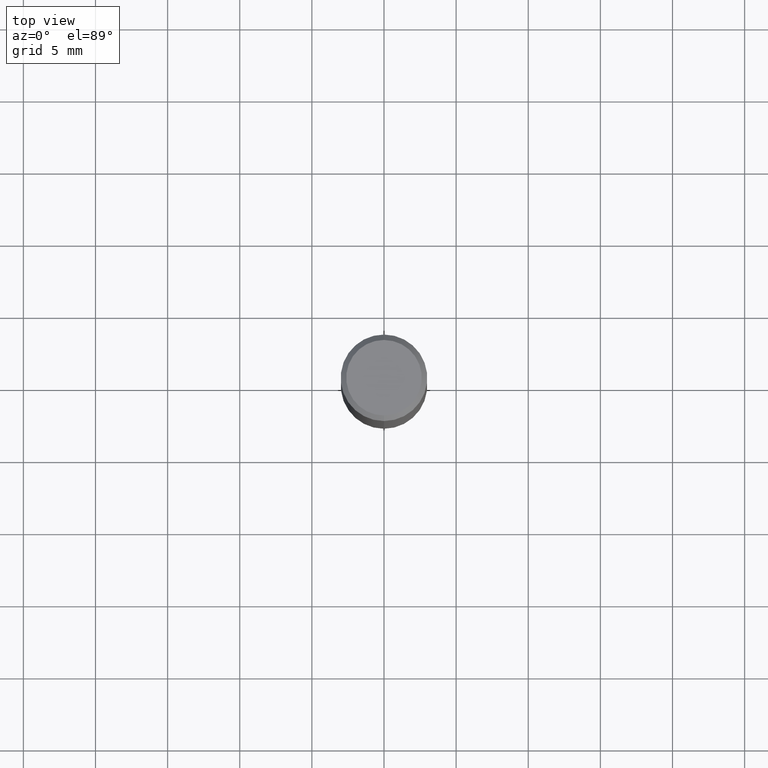
[diagram: clean part render]
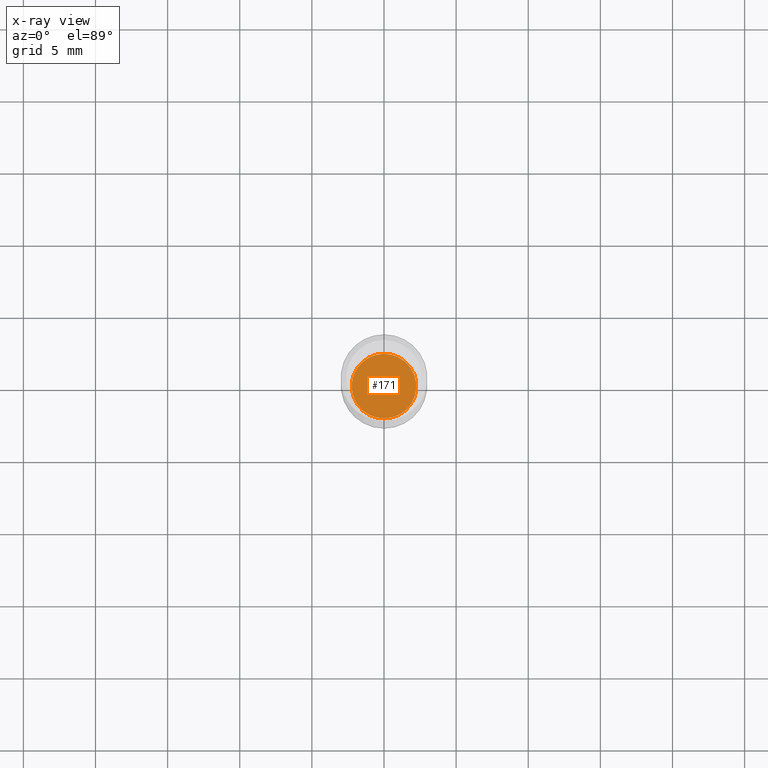
[diagram: x-ray — body ghosted, one internal face saturated and labeled with its STEP entity id]
A machine part, top view, then the same camera in x-ray: the body is ghosted and one INTERNAL B-rep face — a face not visible from any outside direction — is saturated and labeled: STEP entity #171.
In plain terms, the highlighted planar face has unit normal (-0, 0, 1).
Its self-contained STEP definition (entity closure, byte-faithful):
#18 = VERTEX_POINT ( 'NONE', #259 ) ;
#30 = CIRCLE ( 'NONE', #427, 0.08809999999999999776 ) ;
#107 = DIRECTION ( 'NONE',  ( -6.982962677686265133E-15, -1.000000000000000000, 3.100849027995758518E-15 ) ) ;
#111 = CARTESIAN_POINT ( 'NONE',  ( 3.273642595818079531E-29, -4.673499222056415285E-15, -1.338600000000000012 ) ) ;
#171 = ADVANCED_FACE ( 'NONE', ( #228 ), #274, .F. ) ;
#178 = EDGE_CURVE ( 'NONE', #18, #434, #30, .T. ) ;
#182 = AXIS2_PLACEMENT_3D ( 'NONE', #365, #467, #275 ) ;
#206 = CIRCLE ( 'NONE', #182, 0.08809999999999999776 ) ;
#228 = FACE_OUTER_BOUND ( 'NONE', #283, .T. ) ;
#231 = EDGE_CURVE ( 'NONE', #434, #18, #206, .T. ) ;
#259 = CARTESIAN_POINT ( 'NONE',  ( -6.151990119041272080E-16, -0.08810000000000467457, -1.338599999999999790 ) ) ;
#274 = PLANE ( 'NONE',  #449 ) ;
#275 = DIRECTION ( 'NONE',  ( -6.982962677686265133E-15, -1.000000000000000000, 3.100849027995758518E-15 ) ) ;
#283 = EDGE_LOOP ( 'NONE', ( #403, #360 ) ) ;
#291 = CARTESIAN_POINT ( 'NONE',  ( 6.277645070440807445E-16, 0.08809999999999532094, -1.338600000000000234 ) ) ;
#313 = DIRECTION ( 'NONE',  ( -2.445571937709606137E-29, 3.491333648630222721E-15, 1.000000000000000000 ) ) ;
#344 = CARTESIAN_POINT ( 'NONE',  ( 3.273642595818079531E-29, -4.673499222056415285E-15, -1.338600000000000012 ) ) ;
#360 = ORIENTED_EDGE ( 'NONE', *, *, #231, .F. ) ;
#365 = CARTESIAN_POINT ( 'NONE',  ( 3.273642595818079531E-29, -4.673499222056415285E-15, -1.338600000000000012 ) ) ;
#403 = ORIENTED_EDGE ( 'NONE', *, *, #178, .F. ) ;
#427 = AXIS2_PLACEMENT_3D ( 'NONE', #111, #431, #107 ) ;
#431 = DIRECTION ( 'NONE',  ( -2.445571937709606698E-29, 3.491333648630222721E-15, 1.000000000000000000 ) ) ;
#432 = DIRECTION ( 'NONE',  ( -6.982962677686265922E-15, -1.000000000000000000, 3.491333648630222721E-15 ) ) ;
#434 = VERTEX_POINT ( 'NONE', #291 ) ;
#449 = AXIS2_PLACEMENT_3D ( 'NONE', #344, #313, #432 ) ;
#467 = DIRECTION ( 'NONE',  ( -2.445571937709606698E-29, 3.491333648630222721E-15, 1.000000000000000000 ) ) ;